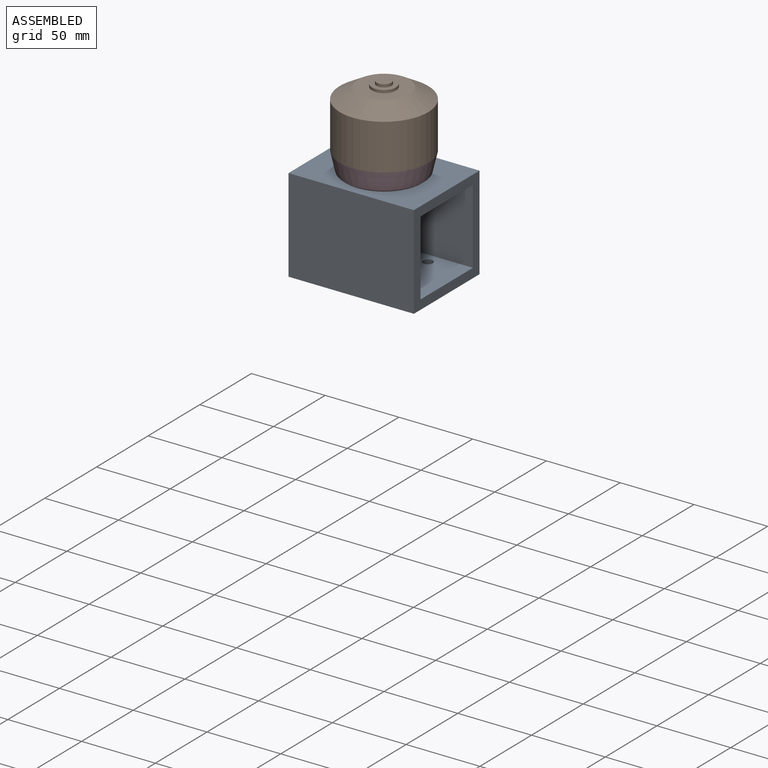
[diagram: assembled view]
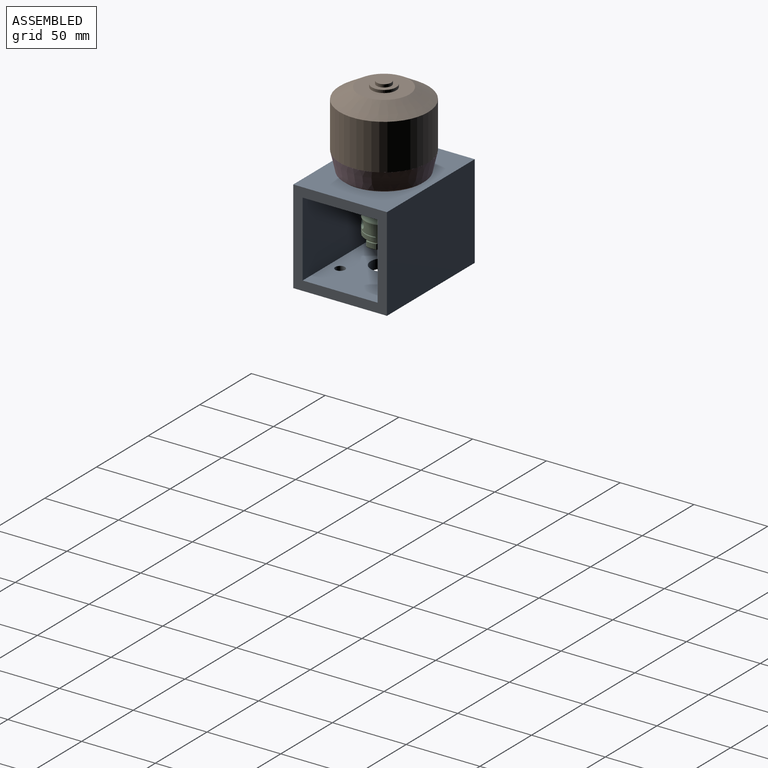
[diagram: assembled view, second angle]
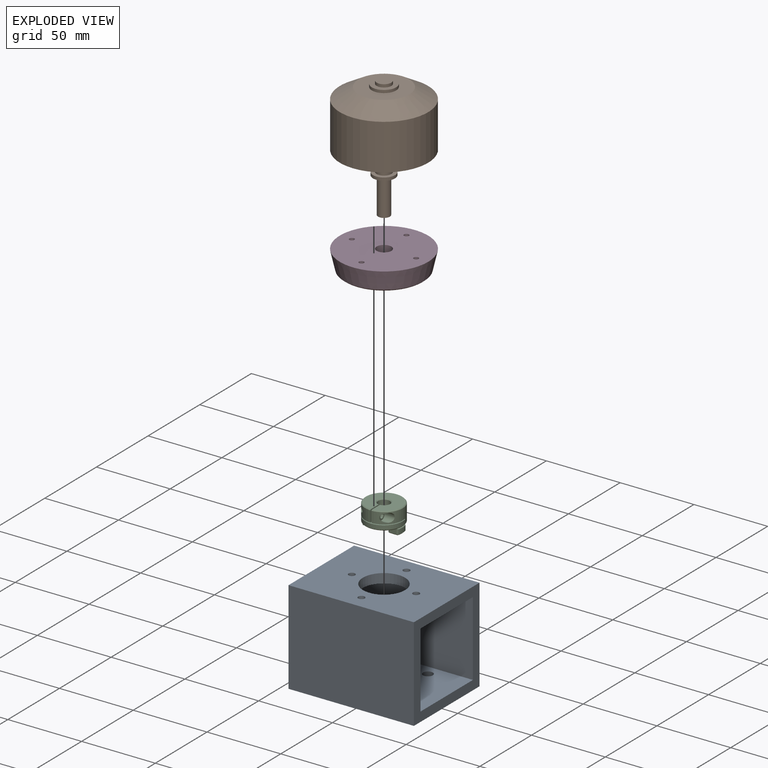
[diagram: exploded view]
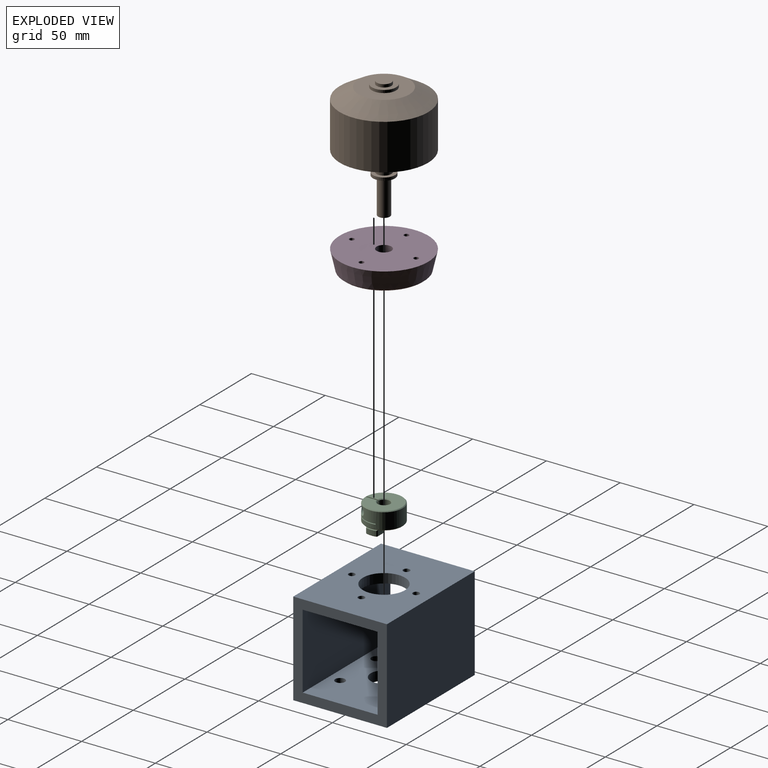
[diagram: exploded view, second angle]
ASSEMBLY  parts=4 mates=3
PART A: 20 faces, bbox 85x63.5x63.5 mm
  f0: plane 85x63.5mm, normal (0,0,1), area 4695.4mm2, adj f1,f7,f8,f9,f10,f11,f12,f13
  f1: plane 85x63.5mm, normal (0,-1,0), area 5397.5mm2, adj f0,f2,f8,f9
  f2: plane 85x63.5mm, normal (0,0,-1), area 5006.2mm2, adj f1,f7,f8,f9,f15,f16,f17,f18
  f3: plane 85x50.8mm, normal (0,1,0), area 4318mm2, adj f4,f6,f8,f9
  f4: plane 85x50.8mm, normal (0,0,-1), area 3615.9mm2, adj f3,f5,f8,f9,f10,f11,f12,f13
  f5: plane 85x50.8mm, normal (0,-1,0), area 4318mm2, adj f4,f6,f8,f9
  f6: plane 85x50.8mm, normal (0,0,1), area 3926.7mm2, adj f3,f5,f8,f9,f15,f16,f17,f18
  f7: plane 85x63.5mm, normal (0,1,0), area 5397.5mm2, adj f0,f2,f8,f9
  f8: plane 63.5x63.5mm, normal (1,0,0), area 1451.6mm2, adj f0,f1,f2,f3,f4,f5,f6,f7
  f9: plane 63.5x63.5mm, normal (-1,0,0), area 1451.6mm2, adj f0,f1,f2,f3,f4,f5,f6,f7
  f10: cylinder r=2.2mm len=6.35mm, axis (0,0,1), area 87.8mm2, adj f0,f4
  f11: cylinder r=2.2mm len=6.35mm, axis (0,0,1), area 87.8mm2, adj f0,f4
  f12: cylinder r=2.2mm len=6.35mm, axis (0,0,1), area 87.8mm2, adj f0,f4
  f13: cylinder r=2.2mm len=6.35mm, axis (0,0,1), area 87.8mm2, adj f0,f4
  f14: cylinder r=14.29mm len=28.58mm, axis (0,0,1), area 570mm2, adj f0,f4
  f15: cylinder r=3.3mm len=6.6mm, axis (0,0,-1), area 131.7mm2, adj f2,f6
  f16: cylinder r=3.3mm len=6.6mm, axis (0,0,-1), area 131.7mm2, adj f2,f6
  f17: cylinder r=3.3mm len=6.6mm, axis (0,0,-1), area 131.7mm2, adj f2,f6
  f18: cylinder r=3.3mm len=6.6mm, axis (0,0,-1), area 131.7mm2, adj f2,f6
  f19: cylinder r=9mm len=18mm, axis (0,0,-1), area 359.1mm2, adj f2,f6
PART B: 14 faces, bbox 60x82.4x60 mm
  f0: plane 10x10mm, normal (0,1,0), area 78.5mm2, adj f1
  f1: cylinder r=5mm len=10mm, axis (0,-1,0), area 62.8mm2, adj f0,f2
  f2: plane 16.5x16.5mm, normal (0,1,0), area 135.3mm2, adj f1,f3
  f3: cylinder r=8.25mm len=16.5mm, axis (0,-1,0), area 98.5mm2, adj f2,f4
  f4: plane 34.5x34.5mm, normal (0,1,0), area 721mm2, adj f3,f5
  f5: cone r=30mm half-angle=59.5deg, axis (0,-1,0), area 2195.8mm2, adj f4,f6
  f6: cylinder r=30mm len=60mm, axis (0,-1,0), area 5843.4mm2, adj f5,f7
  f7: plane 60x60mm, normal (0,-1,0), area 2748.9mm2, adj f6,f8
  f8: cylinder r=5mm len=13.6mm, axis (0,1,0), area 427.3mm2, adj f7,f10
  f9: plane 15x15mm, normal (0,-1,0), area 126.4mm2, adj f11,f13
  f10: plane 15x15mm, normal (0,1,0), area 98.2mm2, adj f8,f11
  f11: cylinder r=7.5mm len=15mm, axis (0,-1,0), area 94.2mm2, adj f9,f10
  f12: plane 8x8mm, normal (0,-1,0), area 50.3mm2, adj f13
  f13: cylinder r=4mm len=24.4mm, axis (0,-1,0), area 613.2mm2, adj f9,f12
PART C: 97 faces, bbox 26x26x16.6 mm
  f0: plane 5.99x5.99mm, normal (1,0,0), area 9.1mm2, adj f1,f18
  f1: cone r=2.47mm half-angle=45deg, axis (1,0,0), area 6.4mm2, adj f0,f2
  f2: cylinder r=2.74mm len=5.49mm, axis (-1,0,0), area 20.4mm2, adj f1,f3
  f3: cone r=2.74mm half-angle=45deg, axis (-1,0,0), area 6.4mm2, adj f2,f4
  f4: plane 4.94x4.94mm, normal (1,0,0), area 11.3mm2, adj f3,f5,f13,f14,f15,f16,f17
  f5: cone r=1.58mm half-angle=45deg, axis (1,0,0), area 0mm2, adj f4,f6
  f6: plane 2.25x1.97mm, normal (0,-0.87,-0.5), area 2.4mm2, adj f5,f7,f11,f12
  f7: plane 3.17x2.74mm, normal (1,0,0), area 6.5mm2, adj f6,f8,f9,f10,f11,f12
  f8: plane 1.8x1.74mm, normal (0,0,1), area 2.4mm2, adj f7,f9,f12,f16
  f9: plane 2.25x1.97mm, normal (0,0.87,0.5), area 2.4mm2, adj f7,f8,f10,f15
  f10: plane 2.25x1.97mm, normal (0,0.87,-0.5), area 2.4mm2, adj f7,f9,f11,f14
  f11: plane 2.25x2.18mm, normal (0,0,-1), area 2.4mm2, adj f6,f7,f10,f13
  f12: plane 2.25x1.97mm, normal (0,-0.87,0.5), area 2.4mm2, adj f6,f7,f8,f17
  f13: cone r=1.58mm half-angle=45deg, axis (1,0,0), area 0mm2, adj f4,f11
  f14: cone r=1.58mm half-angle=45deg, axis (1,0,0), area 0mm2, adj f4,f10
  f15: cone r=1.58mm half-angle=45deg, axis (1,0,0), area 0mm2, adj f4,f9
  f16: cone r=1.58mm half-angle=45deg, axis (1,0,0), area 0.2mm2, adj f4,f8
  f17: cone r=1.58mm half-angle=45deg, axis (1,0,0), area 0mm2, adj f4,f12
  f18: cylinder r=3mm len=8.31mm, axis (-1,0,0), area 106.3mm2, adj f0,f19
  f19: cylinder r=12.7mm len=12.69mm, axis (0,0,1), area 104.8mm2, adj f18,f20,f94,f95,f96
  f20: cylinder r=12.7mm len=25.4mm, axis (0,0,1), area 680.3mm2, adj f19,f21,f44,f89,f90,f91,f92,f93
  f21: cylinder r=1.5mm len=4.3mm, axis (1,0,0), area 25.4mm2, adj f20,f22,f35,f42,f43
  f22: cylinder r=1.5mm len=3mm, axis (1,0,0), area 4.1mm2, adj f21,f23,f35,f43
  f23: cylinder r=1.5mm len=3mm, axis (1,0,0), area 4.1mm2, adj f22,f24,f35,f43
  f24: cylinder r=1.5mm len=3mm, axis (1,0,0), area 4.1mm2, adj f23,f25,f35,f43
  f25: cylinder r=1.5mm len=3mm, axis (1,0,0), area 4.1mm2, adj f24,f26,f35,f43
  f26: cylinder r=1.5mm len=3mm, axis (1,0,0), area 4.1mm2, adj f25,f27,f35,f43
  f27: cylinder r=1.5mm len=3mm, axis (1,0,0), area 4.1mm2, adj f26,f28,f35,f43
  f28: cylinder r=1.5mm len=3mm, axis (1,0,0), area 4.1mm2, adj f27,f29,f35,f43
  f29: cylinder r=1.5mm len=3mm, axis (1,0,0), area 4.1mm2, adj f28,f30,f35,f43
  f30: cylinder r=1.5mm len=3mm, axis (1,0,0), area 4.1mm2, adj f29,f31,f35,f43
  f31: cylinder r=1.5mm len=3mm, axis (1,0,0), area 4.1mm2, adj f30,f32,f35,f43
  f32: cylinder r=1.5mm len=3mm, axis (1,0,0), area 4.1mm2, adj f31,f33,f35,f43
  f33: cylinder r=1.5mm len=3mm, axis (1,0,0), area 3.4mm2, adj f32,f34,f35,f43,f89
  f34: cylinder r=1.5mm len=2.06mm, axis (1,0,0), area 0.2mm2, adj f33,f35,f89
  f35: bspline ~10.31x3mm, area 62.3mm2, adj f21,f22,f23,f24,f25,f26,f27,f28
  f36: plane 2.47x2.44mm, normal (-1,0,0), area 4.6mm2, adj f35,f37,f42,f43
  f37: bspline ~10.13x2.35mm, area 9.3mm2, adj f35,f36,f38,f43
  f38: plane 3.19x3.19mm, normal (-1,0,0), area 1.3mm2, adj f35,f37,f39,f40,f43
  f39: plane 0.11x0.06mm, normal (0,-1,0), area 0mm2, adj f35,f38,f40
  f40: cylinder r=1.5mm len=3mm, axis (1,0,0), area 21.5mm2, adj f35,f38,f39,f43,f95
  f41: cylinder r=1.5mm len=3mm, axis (-1,0,0), area 0.9mm2, adj f35,f43,f89,f95
  f42: cone r=1.23mm half-angle=45deg, axis (1,0,0), area 1.4mm2, adj f21,f35,f36,f43
  f43: bspline ~10.22x3mm, area 62.4mm2, adj f21,f22,f23,f24,f25,f26,f27,f28
  f44: plane 9.7x0.51mm, normal (0,1,0), area 4.9mm2, adj f20,f45,f92,f94
  f45: cylinder r=4mm len=10.85mm, axis (0,0,1), area 212.9mm2, adj f44,f46,f47,f49,f89,f90,f91,f92
  f46: cylinder r=4mm len=7.47mm, axis (0,0,1), area 44mm2, adj f45,f47,f94,f95
  f47: cone r=4.51mm half-angle=45deg, axis (0,0,-1), area 18.6mm2, adj f45,f46,f48,f89,f95
  f48: plane 24.38x24.38mm, normal (0,0,-1), area 397mm2, adj f47,f89,f95,f96
  f49: cone r=4mm half-angle=45deg, axis (0,0,1), area 19.2mm2, adj f45,f50
  f50: plane 24.38x23.12mm, normal (0,0,1), area 313.6mm2, adj f49,f51,f65,f66,f67,f68,f69,f70
  f51: plane 3.69x0.86mm, normal (0.45,0.89,0), area 3.4mm2, adj f50,f52,f53,f63,f64,f65
  f52: plane 7.85x0.72mm, normal (0,0,-1), area 0.4mm2, adj f51,f53,f69,f93
  f53: cone r=12.7mm half-angle=45deg, axis (0,0,1), area 4.8mm2, adj f51,f52,f54,f63,f69
  f54: plane 3.68x0.68mm, normal (0.71,-0.71,0), area 3.2mm2, adj f53,f55,f63,f69
  f55: plane 0.66x0.66mm, normal (0.63,-0.63,0.46), area 0.2mm2, adj f54,f56,f62
  f56: cone r=12.24mm half-angle=45deg, axis (0,0,-1), area 4.6mm2, adj f55,f57,f63,f64
  f57: plane 7.05x5.96mm, normal (0,0,1), area 36.4mm2, adj f56,f58,f61,f62
  f58: cone r=7.2mm half-angle=45deg, axis (0,0,1), area 4.9mm2, adj f57,f59,f60,f67
  f59: plane 0.58x0.46mm, normal (-0.62,-0.1,0.78), area 0.1mm2, adj f58,f62,f68
  f60: plane 0.66x0.47mm, normal (-0.43,0.43,0.79), area 0.1mm2, adj f58,f61,f66
  f61: plane 5.82x0.46mm, normal (0,0.71,0.71), area 3.5mm2, adj f57,f60,f64,f65
  f62: plane 5.95x0.46mm, normal (0,-0.71,0.71), area 3.6mm2, adj f55,f57,f59,f69
  f63: cylinder r=12.7mm len=6.88mm, axis (0,0,-1), area 22.5mm2, adj f51,f53,f54,f56
  f64: plane 0.85x0.46mm, normal (0.4,0.79,0.46), area 0.2mm2, adj f51,f56,f61
  f65: plane 5.44x3.68mm, normal (0,1,0), area 20mm2, adj f50,f51,f61,f66
  f66: plane 3.68x0.27mm, normal (-0.71,0.71,0), area 1.4mm2, adj f50,f60,f65,f67
  f67: cylinder r=6.75mm len=7.3mm, axis (0,0,-1), area 28.4mm2, adj f50,f58,f66,f68
  f68: plane 3.68x0.39mm, normal (-0.99,-0.15,0), area 1.5mm2, adj f50,f59,f67,f69
  f69: plane 5.83x3.68mm, normal (0,-1,0), area 21.5mm2, adj f50,f52,f53,f54,f62,f68
  f70: plane 3.69x0.86mm, normal (-0.45,-0.89,0), area 3.4mm2, adj f50,f71,f72,f82,f83,f84
  f71: plane 7.85x0.72mm, normal (0,0,-1), area 0.4mm2, adj f70,f72,f88,f93
  f72: cone r=12.7mm half-angle=45deg, axis (0,0,1), area 4.8mm2, adj f70,f71,f73,f82,f88
  f73: plane 3.68x0.68mm, normal (-0.71,0.71,0), area 3.2mm2, adj f72,f74,f82,f88
  f74: plane 0.66x0.66mm, normal (-0.63,0.63,0.46), area 0.2mm2, adj f73,f75,f81
  f75: cone r=12.24mm half-angle=45deg, axis (0,0,-1), area 4.6mm2, adj f74,f76,f82,f83
  f76: plane 7.05x5.96mm, normal (0,0,1), area 36.4mm2, adj f75,f77,f80,f81
  f77: cone r=7.2mm half-angle=45deg, axis (0,0,1), area 4.9mm2, adj f76,f78,f79,f86
  f78: plane 0.58x0.46mm, normal (0.62,0.1,0.78), area 0.1mm2, adj f77,f81,f87
  f79: plane 0.66x0.47mm, normal (0.43,-0.43,0.79), area 0.1mm2, adj f77,f80,f85
  f80: plane 5.82x0.46mm, normal (0,-0.71,0.71), area 3.5mm2, adj f76,f79,f83,f84
  f81: plane 5.95x0.46mm, normal (0,0.71,0.71), area 3.6mm2, adj f74,f76,f78,f88
  f82: cylinder r=12.7mm len=6.88mm, axis (0,0,-1), area 22.5mm2, adj f70,f72,f73,f75
  f83: plane 0.85x0.46mm, normal (-0.4,-0.79,0.46), area 0.2mm2, adj f70,f75,f80
  f84: plane 5.44x3.68mm, normal (0,-1,0), area 20mm2, adj f50,f70,f80,f85
  f85: plane 3.68x0.27mm, normal (0.71,-0.71,0), area 1.4mm2, adj f50,f79,f84,f86
  f86: cylinder r=6.75mm len=7.3mm, axis (0,0,-1), area 28.4mm2, adj f50,f77,f85,f87
  f87: plane 3.68x0.39mm, normal (0.99,0.15,0), area 1.5mm2, adj f50,f78,f86,f88
  f88: plane 5.83x3.68mm, normal (0,1,0), area 21.5mm2, adj f50,f71,f72,f73,f81,f87
  f89: plane 8.72x7.98mm, normal (1,0,0), area 62.2mm2, adj f20,f33,f34,f41,f45,f47,f48,f90
  f90: plane 15.69x12.3mm, normal (0,0,1), area 137.7mm2, adj f20,f45,f89,f91
  f91: plane 9.7x0.51mm, normal (0,1,0), area 4.9mm2, adj f20,f45,f90,f92
  f92: plane 25.4x15.7mm, normal (0,0,-1), area 282.2mm2, adj f20,f44,f45,f91
  f93: cone r=12.19mm half-angle=45deg, axis (0,0,-1), area 56.2mm2, adj f20,f50,f52,f71
  f94: plane 15.69x12.3mm, normal (0,0,1), area 137.7mm2, adj f19,f20,f44,f45,f46,f95
  f95: plane 8.72x7.98mm, normal (-1,0,0), area 62.2mm2, adj f19,f40,f41,f46,f47,f48,f94,f96
  f96: cone r=12.7mm half-angle=45deg, axis (0,0,1), area 55.6mm2, adj f19,f20,f48,f89,f95
PART D: 9 faces, bbox 60x13.6x60 mm
  f0: plane 60x60mm, normal (0,1,0), area 2714.7mm2, adj f1,f3,f5,f6,f7,f8
  f1: cone r=26.88mm half-angle=12.9deg, axis (0,1,0), area 2323.8mm2, adj f0,f4
  f2: plane 51.75x51.75mm, normal (0,-1,0), area 1990.6mm2, adj f3,f4,f5,f6,f7,f8
  f3: cylinder r=5mm len=13.6mm, axis (0,1,0), area 427.3mm2, adj f0,f2
  f4: cone r=27.1mm half-angle=51.5deg, axis (0,1,0), area 260.4mm2, adj f1,f2
  f5: cylinder r=1.65mm len=13.6mm, axis (0,-1,0), area 141mm2, adj f0,f2
  f6: cylinder r=1.65mm len=13.6mm, axis (0,-1,0), area 141mm2, adj f0,f2
  f7: cylinder r=1.65mm len=13.6mm, axis (0,-1,0), area 141mm2, adj f0,f2
  f8: cylinder r=1.65mm len=13.6mm, axis (0,-1,0), area 141mm2, adj f0,f2
PLACE A t=(0,0,-25.4)mm
PLACE B rot(axis=(1,0,0),90deg) t=(0,0,19.95)mm
PLACE C rot(axis=(1,0,0),180deg) t=(0,0,-35.93)mm
PLACE D rot(axis=(0.58,0.58,0.58),120deg) t=(0,0,19.95)mm
MATE revolute B.f1 <-> D.f1  axis (0,0,-1) through (0,0,19.95)mm
MATE slider B.f1 <-> C.f19  axis (0,0,-1) through (0,0,-20.05)mm
MATE fastened D.f5 <-> A.f12  axis (0,0,-1) through (21.8,0,6.35)mm
